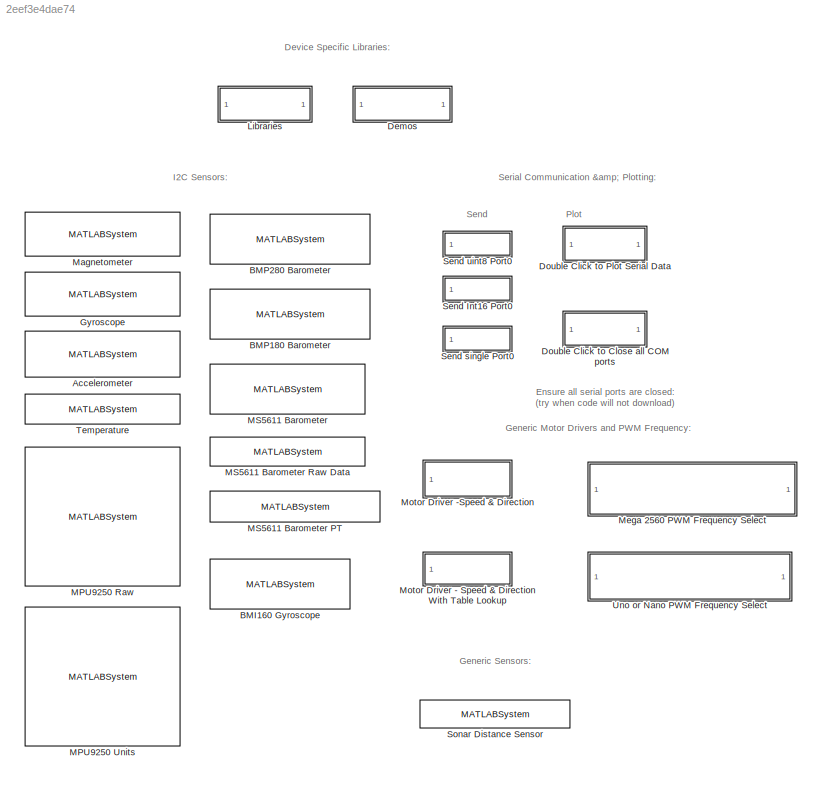
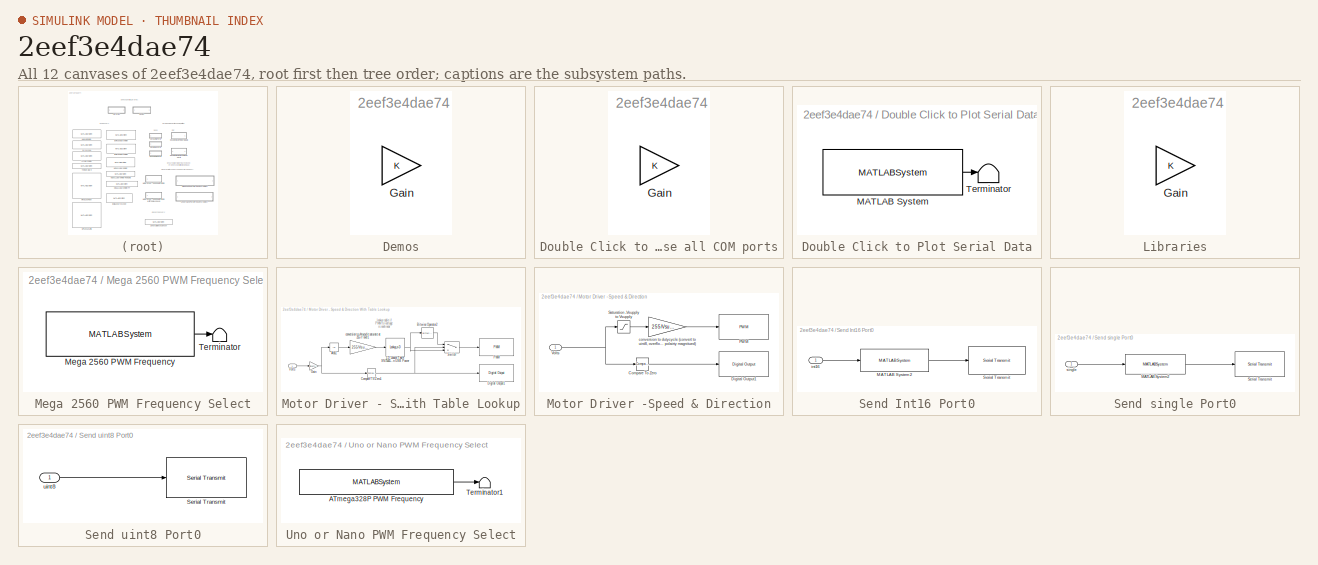
[diagram: thumbnail index - all 12 canvases of the model, root first then tree order]
MODEL slx_2eef3e4dae74
KIND library
CONFIG AbsTol = auto
CONFIG FixedStep = auto
CONFIG MaxStep = auto
CONFIG MinStep = auto
CONFIG PostLoadFcn = setsysloc(bdroot)
CONFIG RelTol = 1e-3
CONFIG SampleTimeConstraint = Unconstrained
CONFIG Solver = ode45
CONFIG SolverMode = Auto
CONFIG SolverName = ode45
CONFIG StartFcn = open_system('MinSegLibrary','force')
CONFIG StartTime = 0.0
CONFIG StopTime = 10.0
BLOCK [MATLABSystem] Accelerometer
  MaskDisplay = disp('soMPU6050Accel');\nport_label('output',1,'xaccel');\nport_label('output',2,'yaccel');\nport_label('output',3,'zaccel');
  MaskType = soMPU6050Accel
  Ports = [0, 3]
  SimulateUsing = Code generation
  System = soMPU6050Accel
BLOCK [MATLABSystem] BMI160 Gyroscope
  MaskDisplay = disp('soBMI160Gyro');\nport_label('output',1,'xvel');\nport_label('output',2,'yvel');\nport_label('output',3,'zvel');
  MaskType = soBMI160Gyro
  Ports = [0, 3]
  System = soBMI160Gyro
BLOCK [MATLABSystem] BMP180 Barometer
  MaskDisplay = disp('soBMP180');\nport_label('output',1,'pres_Pa');\nport_label('output',2,'absAlt_m');\nport_label('output',3,'temp_C');
  MaskType = soBMP180
  Ports = [0, 3]
  SimulateUsing = Code generation
  System = soBMP180
BLOCK [MATLABSystem] BMP280 Barometer
  MaskDisplay = disp('soBMP280');\nport_label('output',1,'pres_Pa');\nport_label('output',2,'absAlt_m');\nport_label('output',3,'temp_C');
  MaskType = soBMP280
  Ports = [0, 3]
  SimulateUsing = Code generation
  System = soBMP280
BLOCK [SubSystem] Demos
  OpenFcn = Examples
  Ports = []
  RequestExecContextInheritance = off
BLOCK [Gain] Demos/Gain
  OutDataTypeStr = Inherit: Inherit via internal rule
  ParamDataTypeStr = Inherit: Inherit via internal rule
  SaturateOnIntegerOverflow = off
BLOCK [SubSystem] Double Click to Close all COM ports
  OpenFcn = g=msgbox('Closing all COM ports');\ndisp('closing all COM ports')\nnewobjs=instrfindall\n% Close them!\ntry,\n    fclose(newobjs);\n    delete(newobjs);\ncatch, end\npause(1), close(g);
  Ports = []
  RequestExecContextInheritance = off
BLOCK [Gain] Double Click to Close all COM ports/Gain
  OutDataTypeStr = Inherit: Inherit via internal rule
  ParamDataTypeStr = Inherit: Inherit via internal rule
  SaturateOnIntegerOverflow = off
BLOCK [SubSystem] Double Click to Plot Serial Data
  Ports = []
  RequestExecContextInheritance = off
BLOCK [MATLABSystem] Double Click to Plot Serial Data/MATLAB System
  MaskDisplay = disp('Send Data Start String');\nport_label('output',1,'y');
  MaskType = soSendDataStartString
  Ports = [0, 1]
  SampleTime = -1
  System = soSendDataStartString
BLOCK [Terminator] Double Click to Plot Serial Data/Terminator
BLOCK [MATLABSystem] Gyroscope
  DLPFmode = 0
  MaskDisplay = disp('soMPU6050Gyro');\nport_label('output',1,'xvel');\nport_label('output',2,'yvel');\nport_label('output',3,'zvel');
  MaskType = soMPU6050Gyro
  Ports = [0, 3]
  System = soMPU6050Gyro
BLOCK [SubSystem] Libraries
  OpenFcn = HardwareLibraries
  Ports = []
  RequestExecContextInheritance = off
BLOCK [Gain] Libraries/Gain
  OutDataTypeStr = Inherit: Inherit via internal rule
  ParamDataTypeStr = Inherit: Inherit via internal rule
  SaturateOnIntegerOverflow = off
BLOCK [MATLABSystem] MPU9250 Raw
  MaskDisplay = disp('soMPU9250RAW');\nport_label('output',1,'xaccel');\nport_label('output',2,'yaccel');\nport_label('output',3,'zaccel');\nport_label('output',4,'xgyro');\nport_label('output',5,'ygyro');\nport_label('output',6,'zgyro');\nport_label('output',7,'xmag');\nport_label('output',8,'ymag');\nport_label('output',9,'zmag');\nport_label('output',10,'temp');
  MaskType = soMPU9250RAW
  Ports = [0, 10]
  SimulateUsing = Code generation
  System = soMPU9250RAW
BLOCK [MATLABSystem] MPU9250 Units
  MaskDisplay = disp('soMPU9250');\nport_label('output',1,'ax_mg');\nport_label('output',2,'ay_mg');\nport_label('output',3,'az_mg');\nport_label('output',4,'gx_ds');\nport_label('output',5,'gy_ds');\nport_label('output',6,'gz_ds');\nport_label('output',7,'mx_mG');\nport_label('output',8,'my_mG');\nport_label('output',9,'mz_mG');\nport_label('output',10,'temp_C');
  MaskType = soMPU9250
  Ports = [0, 10]
  SimulateUsing = Code generation
  System = soMPU9250
BLOCK [MATLABSystem] MS5611 Barometer
  MaskDisplay = disp('soMS5611');\nport_label('output',1,'pres_Pa');\nport_label('output',2,'temp_C');\nport_label('output',3,'absAlt_m');\nport_label('output',4,'relAlt_m');
  MaskType = soMS5611
  Ports = [0, 4]
  SimulateUsing = Code generation
  System = soMS5611
BLOCK [MATLABSystem] MS5611 Barometer PT
  MaskDisplay = disp('soMS5611BaroPT');\nport_label('output',1,'pres_Pa');\nport_label('output',2,'temp_C');
  MaskType = soMS5611BaroPT
  Ports = [0, 2]
  SimulateUsing = Code generation
  System = soMS5611BaroPT
BLOCK [MATLABSystem] MS5611 Barometer Raw Data
  MaskDisplay = disp('soMS5611BaroRAW');\nport_label('output',1,'pres');\nport_label('output',2,'temp');
  MaskType = soMS5611BaroRAW
  Ports = [0, 2]
  SimulateUsing = Code generation
  System = soMS5611BaroRAW
BLOCK [MATLABSystem] Magnetometer
  MaskDisplay = disp('soHMC5883L');\nport_label('output',1,'xmag');\nport_label('output',2,'ymag');\nport_label('output',3,'zmag');
  MaskType = soHMC5883L
  Ports = [0, 3]
  SimulateUsing = Code generation
  System = soHMC5883L
BLOCK [SubSystem] Mega 2560 PWM Frequency Select
  Ports = []
  RequestExecContextInheritance = off
BLOCK [MATLABSystem] Mega 2560 PWM Frequency Select/Mega 2560 PWM Frequency
  MaskDisplay = disp('Mega PWM Frequency Select');\nport_label('output',1,'y');
  MaskType = PWMselect
  PWMFSelect = Frequency
  PWMTimer = Timer
  Ports = [0, 1]
  SampleTime = 0
  System = PWMselect
BLOCK [Terminator] Mega 2560 PWM Frequency Select/Terminator
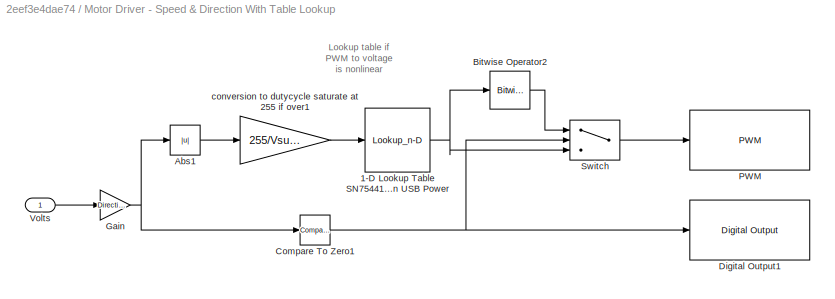
BLOCK [SubSystem] Motor Driver - Speed & Direction With Table Lookup
  Ports = [1]
  RequestExecContextInheritance = off
BLOCK [Lookup_n-D] Motor Driver - Speed & Direction With Table Lookup/1-D Lookup Table SN754410 Maxon USB Power
  BreakpointsForDimension1 = [0 3 110 255]
  BreakpointsForDimension1DataTypeStr = uint8
  ExtrapMethod = Clip
  InternalRulePriority = Speed
  NumberOfTableDimensions = 1
  OutDataTypeStr = uint8
  Ports = [1, 1]
  RndMeth = Simplest
  SaturateOnIntegerOverflow = on
  Table = [0 13 28 255]
  TableDataTypeStr = uint8
  UseLastTableValue = on
BLOCK [Abs] Motor Driver - Speed & Direction With Table Lookup/Abs1
  SaturateOnIntegerOverflow = off
BLOCK [Reference] Motor Driver - Speed & Direction With Table Lookup/Bitwise Operator2  REF=simulink/Logic and Bit
Operations/Bitwise
Operator
  BitMask = bin2dec('11011001')
  BitMaskRealWorld = Stored Integer
  NumInputPorts = 1
  Ports = [1, 1]
  SourceBlock = simulink/Logic and Bit\nOperations/Bitwise\nOperator
  SourceType = Bitwise Operator
  UseBitMask = off
  logicop = NOT
BLOCK [Reference] Motor Driver - Speed & Direction With Table Lookup/Compare To Zero1  REF=simulink/Logic and Bit
Operations/Compare
To Zero
  OutDataTypeStr = boolean
  Ports = [1, 1]
  SourceBlock = simulink/Logic and Bit\nOperations/Compare\nTo Zero
  SourceType = Compare To Zero
  ZeroCross = on
  relop = <
BLOCK [Reference] Motor Driver - Speed & Direction With Table Lookup/Digital Output1  REF=arduinolib/Digital Output
  Ports = [1]
  SourceBlock = arduinolib/Digital Output
  SourceType = Arduino Digital Output
  blockPlatform = arduino
  pinNumber = DigitalPin
BLOCK [Gain] Motor Driver - Speed & Direction With Table Lookup/Gain
  Gain = Direction
  OutDataTypeStr = Inherit: Inherit via internal rule
  ParamDataTypeStr = Inherit: Inherit via internal rule
  SaturateOnIntegerOverflow = off
BLOCK [Reference] Motor Driver - Speed & Direction With Table Lookup/PWM  REF=arduinolib/PWM
  Ports = [1]
  SourceBlock = arduinolib/PWM
  SourceType = Arduino PWM
  blockPlatform = arduino
  pinNumber = PWMPin
BLOCK [Switch] Motor Driver - Speed & Direction With Table Lookup/Switch
  Criteria = u2 ~= 0
  InputSameDT = off
  SaturateOnIntegerOverflow = off
BLOCK [Inport] Motor Driver - Speed & Direction With Table Lookup/Volts
  IconDisplay = Port number
BLOCK [Gain] Motor Driver - Speed & Direction With Table Lookup/conversion to dutycycle saturate at 255 if over1
  Gain = 255/Vsupply
  OutDataTypeStr = uint8
  ParamDataTypeStr = Inherit: Inherit via internal rule
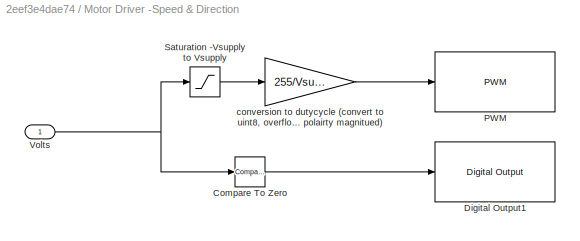
BLOCK [SubSystem] Motor Driver -Speed & Direction
  Ports = [1]
  RequestExecContextInheritance = off
BLOCK [Reference] Motor Driver -Speed & Direction/Compare To Zero  REF=simulink/Logic and Bit
Operations/Compare
To Zero
  OutDataTypeStr = boolean
  Ports = [1, 1]
  SourceBlock = simulink/Logic and Bit\nOperations/Compare\nTo Zero
  SourceType = Compare To Zero
  ZeroCross = on
  relop = <
BLOCK [Reference] Motor Driver -Speed & Direction/Digital Output1  REF=arduinolib/Digital Output
  Ports = [1]
  SourceBlock = arduinolib/Digital Output
  SourceType = Arduino Digital Output
  blockPlatform = arduino
  pinNumber = DigatlPin
BLOCK [Reference] Motor Driver -Speed & Direction/PWM  REF=arduinolib/PWM
  Ports = [1]
  SourceBlock = arduinolib/PWM
  SourceType = Arduino PWM
  blockPlatform = arduino
  pinNumber = PWMPin
BLOCK [Saturate] Motor Driver -Speed & Direction/Saturation -Vsupply to Vsupply
  InputPortMap = u0
  LowerLimit = -Vsupply
  OutDataTypeStr = single
  Ports = [1, 1]
  UpperLimit = Vsupply
BLOCK [Inport] Motor Driver -Speed & Direction/Volts
  IconDisplay = Port number
BLOCK [Gain] Motor Driver -Speed & Direction/conversion to dutycycle (convert to uint8, overflow will provide reverse polairty magnitued)
  Gain = 255/Vsupply
  OutDataTypeStr = uint8
  ParamDataTypeStr = Inherit: Inherit via internal rule
  SaturateOnIntegerOverflow = off
BLOCK [SubSystem] Send Int16 Port0
  Ports = [1]
  RequestExecContextInheritance = off
BLOCK [MATLABSystem] Send Int16 Port0/MATLAB System2
  MaskDisplay = disp('so_int2bytes');\nport_label('input',1,'int_in');\nport_label('output',1,'out');
  MaskType = so_int2bytes
  Ports = [1, 1]
  SimulateUsing = Code generation
  System = so_int2bytes
BLOCK [Reference] Send Int16 Port0/Serial Transmit  REF=arduinolib/Serial Transmit
  Ports = [1]
  SourceBlock = arduinolib/Serial Transmit
  SourceType = Arduino Serial Transmit
  blockPlatform = arduino
  portNumber = 0
BLOCK [Inport] Send Int16 Port0/int16
  IconDisplay = Port number
BLOCK [SubSystem] Send single Port0
  Ports = [1]
  RequestExecContextInheritance = off
BLOCK [MATLABSystem] Send single Port0/MATLAB System2
  MaskDisplay = disp('so_float2bytes');\nport_label('input',1,'fin');\nport_label('output',1,'out');
  MaskType = so_float2bytes
  Ports = [1, 1]
  SimulateUsing = Code generation
  System = so_float2bytes
BLOCK [Reference] Send single Port0/Serial Transmit  REF=arduinolib/Serial Transmit
  Ports = [1]
  SourceBlock = arduinolib/Serial Transmit
  SourceType = Arduino Serial Transmit
  blockPlatform = arduino
  portNumber = 0
BLOCK [Inport] Send single Port0/single
  IconDisplay = Port number
  LockScale = on
  OutDataTypeStr = single
BLOCK [SubSystem] Send uint8 Port0
  Ports = [1]
  RequestExecContextInheritance = off
BLOCK [Reference] Send uint8 Port0/Serial Transmit  REF=arduinolib/Serial Transmit
  Ports = [1]
  SourceBlock = arduinolib/Serial Transmit
  SourceType = Arduino Serial Transmit
  blockPlatform = arduino
  portNumber = 0
BLOCK [Inport] Send uint8 Port0/uint8
  IconDisplay = Port number
BLOCK [MATLABSystem] Sonar Distance Sensor
  EchoPin = 8
  MaskDisplay = disp('soHCSR04Sonar');\nport_label('output',1,'d_cm');
  MaskType = soHCSR04Sonar
  Ports = [0, 1]
  Sonar = 1
  System = soHCSR04Sonar
  TrigPin = 7
BLOCK [MATLABSystem] Temperature
  MaskDisplay = disp('soMPU6050Temp');\nport_label('output',1,'temp');
  MaskType = soMPU6050Temp
  Ports = [0, 1]
  SimulateUsing = Code generation
  System = soMPU6050Temp
BLOCK [SubSystem] Uno or Nano PWM Frequency Select
  Ports = []
  RequestExecContextInheritance = off
BLOCK [MATLABSystem] Uno or Nano PWM Frequency Select/ATmega328P PWM Frequency
  MaskDisplay = disp('ATmega328P PWM Frequency Select');\nport_label('output',1,'y');
  MaskType = PWMselect_uno_nano
  PWMFSelect = Frequency
  PWMTimer = Timer
  Ports = [0, 1]
  SampleTime = 0
  System = PWMselect_uno_nano
BLOCK [Terminator] Uno or Nano PWM Frequency Select/Terminator1
ANNOTATION (root): Generic Motor Drivers and PWM Frequency:
ANNOTATION (root): Generic Sensors:
ANNOTATION (root): Serial Communication & Plotting:
ANNOTATION (root): Device Specific Libraries:
ANNOTATION (root): Ensure all serial ports are closed: (try when code will not download)
ANNOTATION (root): I2C Sensors:
ANNOTATION (root): Plot
ANNOTATION (root): Send
ANNOTATION Motor Driver - Speed & Direction With Table Lookup: Lookup table if PWM to voltage is nonlinear
LINE Double Click to Plot Serial Data/MATLAB System:1 -> Double Click to Plot Serial Data/Terminator:1
LINE Mega 2560 PWM Frequency Select/Mega 2560 PWM Frequency:1 -> Mega 2560 PWM Frequency Select/Terminator:1
NET Motor Driver - Speed & Direction With Table Lookup/1-D Lookup Table SN754410 Maxon USB Power:1 -> Motor Driver - Speed & Direction With Table Lookup/Bitwise Operator2:1, Motor Driver - Speed & Direction With Table Lookup/Switch:3
LINE Motor Driver - Speed & Direction With Table Lookup/Abs1:1 -> Motor Driver - Speed & Direction With Table Lookup/conversion to dutycycle saturate at 255 if over1:1
LINE Motor Driver - Speed & Direction With Table Lookup/Bitwise Operator2:1 -> Motor Driver - Speed & Direction With Table Lookup/Switch:1
NET Motor Driver - Speed & Direction With Table Lookup/Compare To Zero1:1 -> Motor Driver - Speed & Direction With Table Lookup/Digital Output1:1, Motor Driver - Speed & Direction With Table Lookup/Switch:2
NET Motor Driver - Speed & Direction With Table Lookup/Gain:1 -> Motor Driver - Speed & Direction With Table Lookup/Abs1:1, Motor Driver - Speed & Direction With Table Lookup/Compare To Zero1:1
LINE Motor Driver - Speed & Direction With Table Lookup/Switch:1 -> Motor Driver - Speed & Direction With Table Lookup/PWM:1
LINE Motor Driver - Speed & Direction With Table Lookup/Volts:1 -> Motor Driver - Speed & Direction With Table Lookup/Gain:1
LINE Motor Driver - Speed & Direction With Table Lookup/conversion to dutycycle saturate at 255 if over1:1 -> Motor Driver - Speed & Direction With Table Lookup/1-D Lookup Table SN754410 Maxon USB Power:1
LINE Motor Driver -Speed & Direction/Compare To Zero:1 -> Motor Driver -Speed & Direction/Digital Output1:1
LINE Motor Driver -Speed & Direction/Saturation -Vsupply to Vsupply:1 -> Motor Driver -Speed & Direction/conversion to dutycycle (convert to uint8, overflow will provide reverse polairty magnitued):1
NET Motor Driver -Speed & Direction/Volts:1 -> Motor Driver -Speed & Direction/Compare To Zero:1, Motor Driver -Speed & Direction/Saturation -Vsupply to Vsupply:1
LINE Motor Driver -Speed & Direction/conversion to dutycycle (convert to uint8, overflow will provide reverse polairty magnitued):1 -> Motor Driver -Speed & Direction/PWM:1
LINE Send Int16 Port0/MATLAB System2:1 -> Send Int16 Port0/Serial Transmit:1
LINE Send Int16 Port0/int16:1 -> Send Int16 Port0/MATLAB System2:1
LINE Send single Port0/MATLAB System2:1 -> Send single Port0/Serial Transmit:1
LINE Send single Port0/single:1 -> Send single Port0/MATLAB System2:1
LINE Send uint8 Port0/uint8:1 -> Send uint8 Port0/Serial Transmit:1
LINE Uno or Nano PWM Frequency Select/ATmega328P PWM Frequency:1 -> Uno or Nano PWM Frequency Select/Terminator1:1
note: NET lines group one-source signal fan-out (src -> all destinations, sorted); 1:1 wires keep LINE
